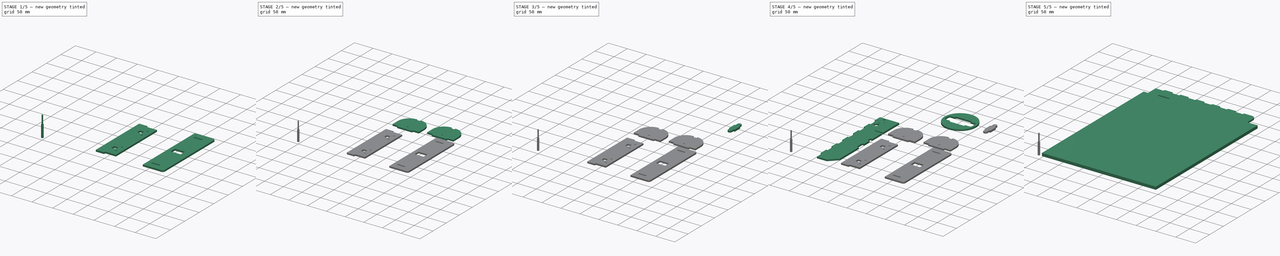
[diagram: build sequence overview — one tinted view per stage of 5, left to right]
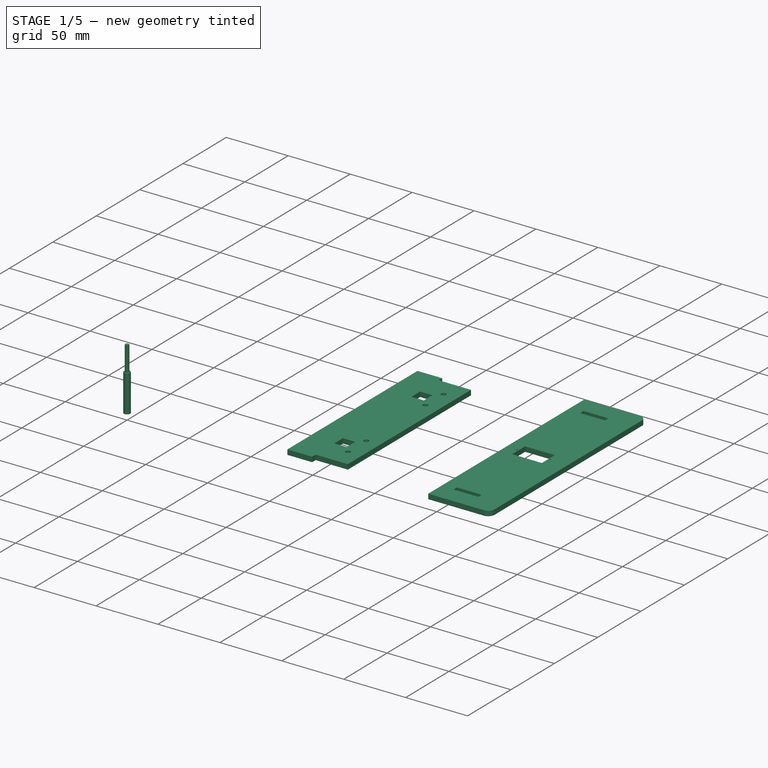
[diagram: stage 1 of 5 — iso view after this stage's code; geometry added in this stage tinted green]
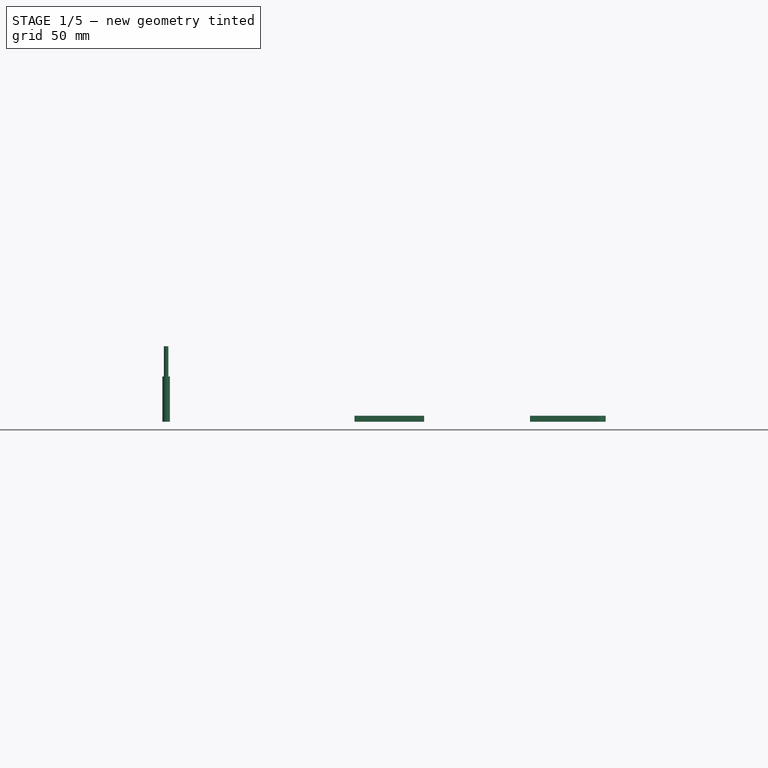
[diagram: stage 1 of 5 — front view after this stage's code; geometry added in this stage tinted green]
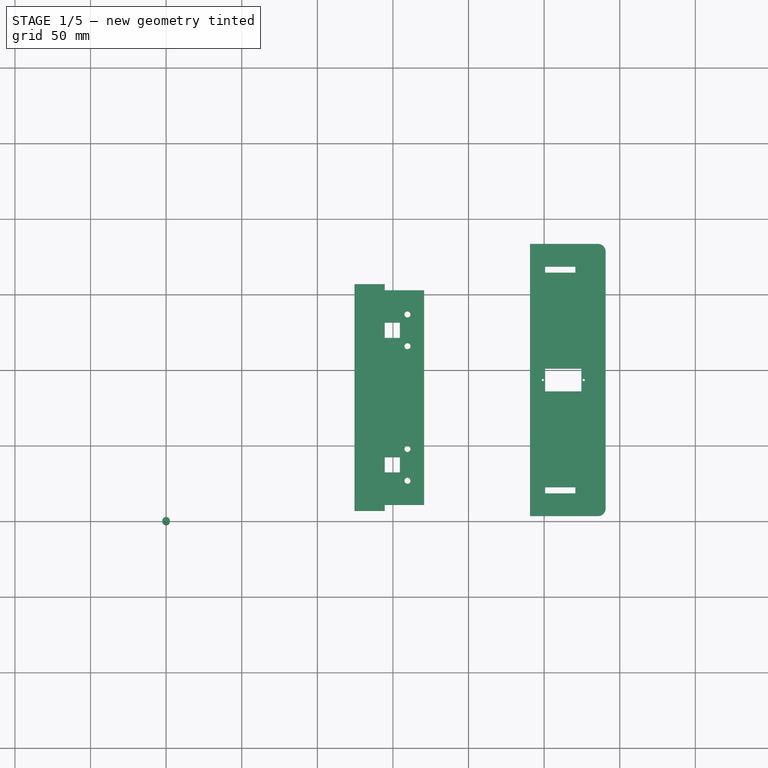
[diagram: stage 1 of 5 — top view after this stage's code; geometry added in this stage tinted green]
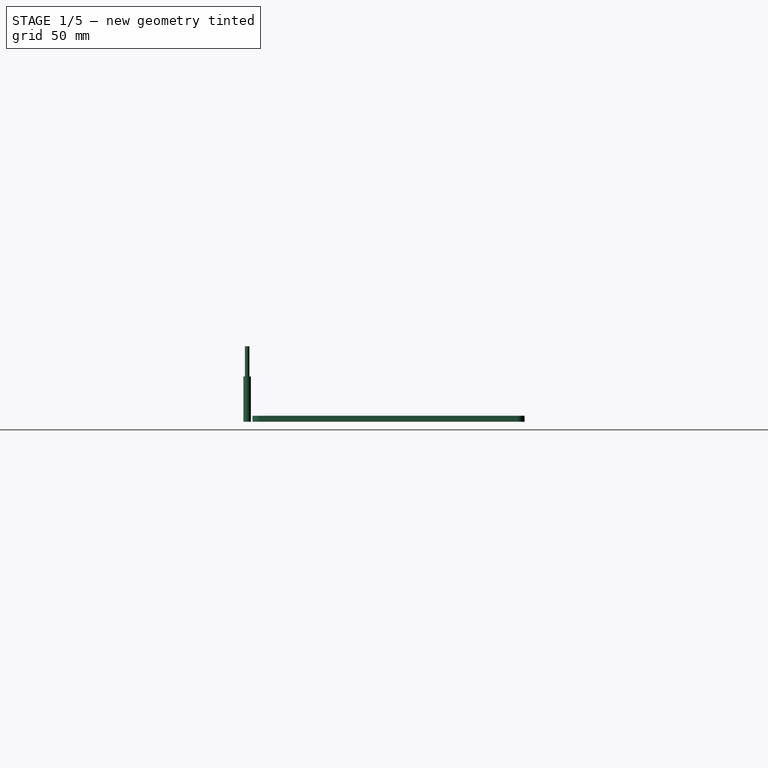
[diagram: stage 1 of 5 — right view after this stage's code; geometry added in this stage tinted green]
FCSTD DOCUMENT  (FreeCAD 1.0R39319 (Git))
Label: CAR_LASER_COMPONENTS
License: All rights reserved
LicenseURL: https://en.wikipedia.org/wiki/All_rights_reserved
objects: Part::FeaturePython×19, Part::Part2DObjectPython×8, Path::FeaturePython×6, App::DocumentObjectGroup×3, Sketcher::SketchObject×2, App::FeaturePython×1, App::LinkGroup×1
note: 31 computed .brp shape members not serialized (recipe doc carries the construction recipe); baked Part::Feature solids carry a one-line shape summary decoded from their .brp

FEATURE [Part::FeaturePython] b_chassis_SERVO_STRUT_A4_001_  label="chassis_SERVO_STRUT_A4_001"  # a2plus imported part (geometry in sourceFile) (typed FeaturePython)
  Placement = pos=(140.674,18.548,0) rot=(0,0,1;0rad)
  a2p_Version = 0.4.68
  fixedPosition = false
  objectType = a2pPart
  sourceFile = ./chassis_SERVO_STRUT_A4.FCStd
  subassemblyImport = false
  timeLastImport = 1.77488e+09
  updateColors = true
FEATURE [Part::FeaturePython] b_shear_strut_001_  label="shear_strut_001"  # a2plus imported part (geometry in sourceFile) (typed FeaturePython)
  Placement = pos=(170.611,156.939,4) rot=(0.707107,0,-0.707107;3.14159rad)
  a2p_Version = 0.4.68
  fixedPosition = false
  objectType = a2pPart
  sourceFile = ./shear_strut.FCStd
  subassemblyImport = false
  timeLastImport = 1.77246e+09
  updateColors = true
FEATURE [Part::FeaturePython] Clone007  label="Model-shear_strut_001"  # Draft clone (typed FeaturePython)
  AttacherType = Attacher::AttachEngine3D
  Fuse = false
  Objects = -> [b_shear_strut_001_]
  PathResource = Model
  Placement = pos=(170.611,156.939,4) rot=(0.707107,0,-0.707107;3.14159rad)
  Scale = (1,1,1)
FEATURE [App::DocumentObjectGroup] Model
  Group = -> [Clone,Clone001,Clone002,Clone004,Clone005,Clone006,Clone007,Clone008]
FEATURE [Part::FeaturePython] ToolBit  label="Endmill"  # Path/CAM toolbit (typed FeaturePython)
  BitPropertyNames = Chipload | CuttingEdgeHeight | Diameter | Flutes | Length | Material | ShankDiameter | SpindleDirection
  BitShape = <path>
  Chipload = 0
  CuttingEdgeHeight = 30
  Diameter = 5
  Flutes = 0
  Length = 50
  Material = 0
  ShankDiameter = 3
  ShapeName = endmill
  SpindleDirection = 0
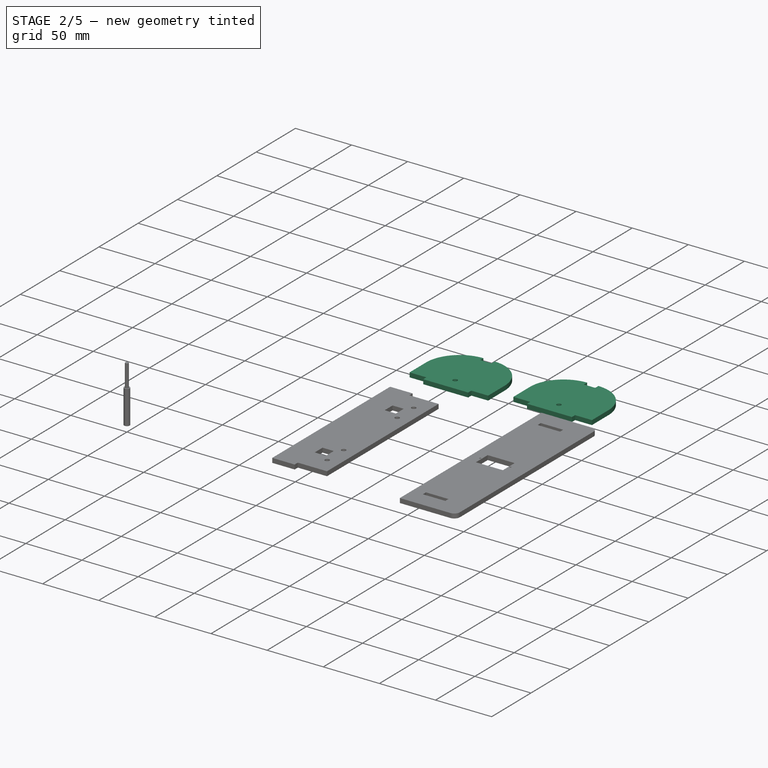
[diagram: stage 2 of 5 — iso view after this stage's code; geometry added in this stage tinted green]
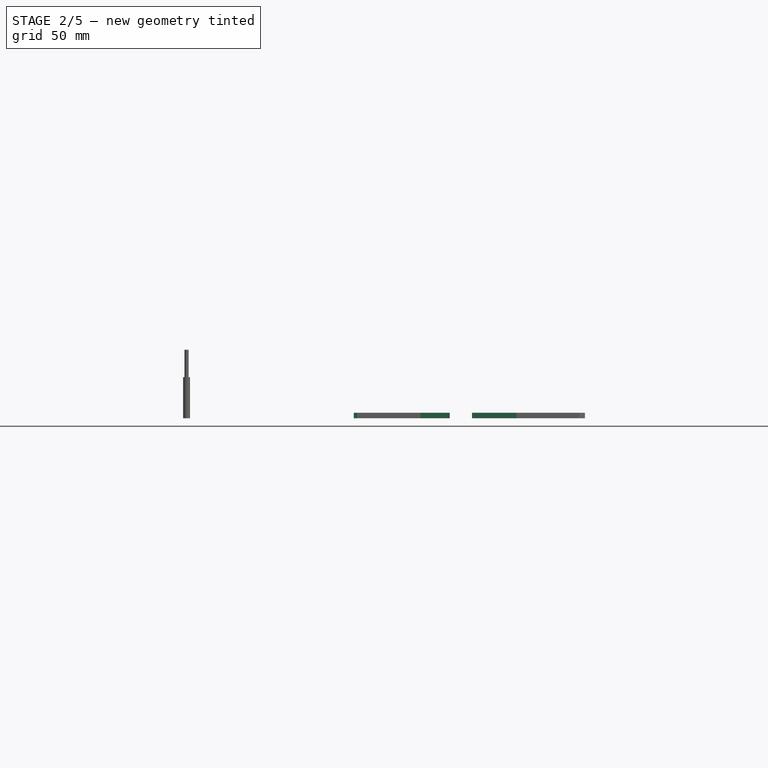
[diagram: stage 2 of 5 — front view after this stage's code; geometry added in this stage tinted green]
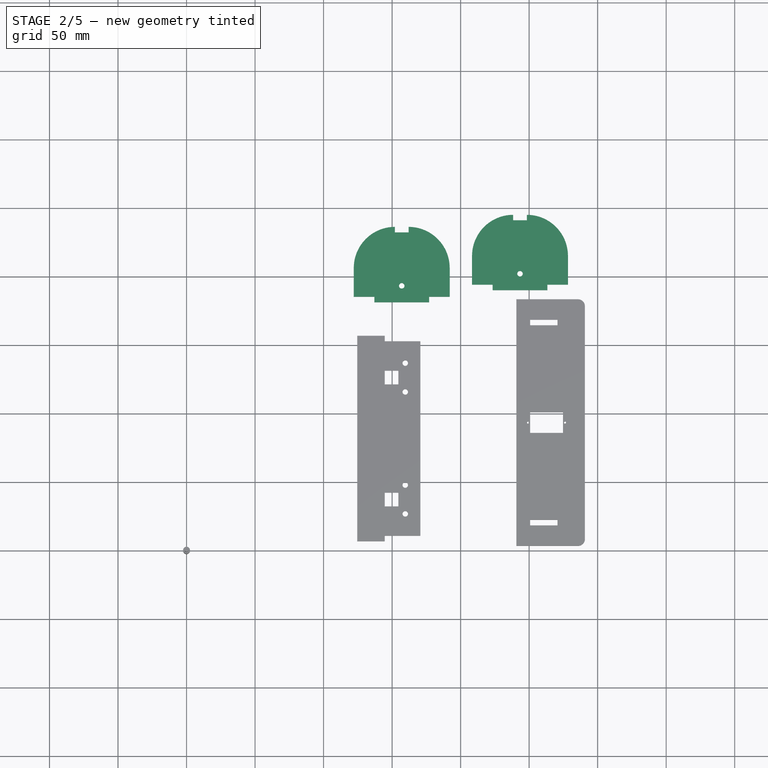
[diagram: stage 2 of 5 — top view after this stage's code; geometry added in this stage tinted green]
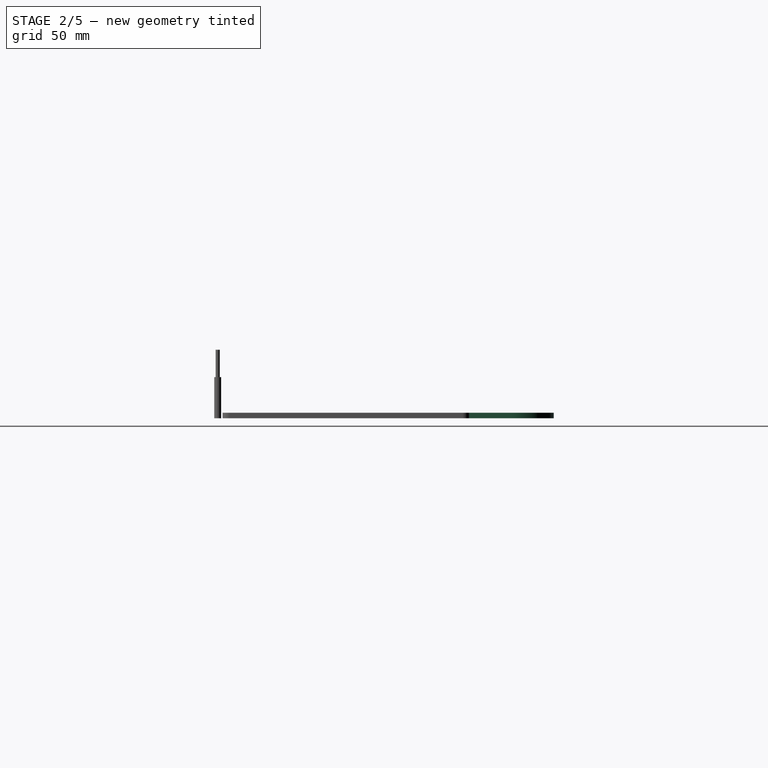
[diagram: stage 2 of 5 — right view after this stage's code; geometry added in this stage tinted green]
FEATURE [Part::FeaturePython] b_chassis_wheel_side_001_  label="chassis_wheel_side_001"  # a2plus imported part (geometry in sourceFile) (typed FeaturePython)
  Placement = pos=(208.328,190.182,2.9e-15) rot=(-1,0,0;1.5708rad)
  a2p_Version = 0.4.68
  fixedPosition = false
  objectType = a2pPart
  sourceFile = ./chassis_wheel_side.FCStd
  subassemblyImport = false
  timeLastImport = 1.77488e+09
  updateColors = true
FEATURE [Part::FeaturePython] b_chassis_wheel_side_001_001  label="chassis_wheel_side_002"  # a2plus imported part (geometry in sourceFile) (typed FeaturePython)
  Placement = pos=(122.028,181.382,8e-16) rot=(-1,0,0;1.5708rad)
  a2p_Version = 0.4.68
  fixedPosition = false
  objectType = a2pPart
  sourceFile = ./chassis_wheel_side.FCStd
  subassemblyImport = false
  timeLastImport = 1.77488e+09
  updateColors = true
FEATURE [Part::FeaturePython] Clone004  label="Model-chassis_SERVO_STRUT_A4_001"  # Draft clone (typed FeaturePython)
  AttacherType = Attacher::AttachEngine3D
  Fuse = false
  Objects = -> [b_chassis_SERVO_STRUT_A4_001_]
  PathResource = Model
  Placement = pos=(140.674,18.548,0) rot=(0,0,1;0rad)
  Scale = (1,1,1)
FEATURE [Part::FeaturePython] Clone006  label="Model-chassis_wheel_side_002"  # Draft clone (typed FeaturePython)
  AttacherType = Attacher::AttachEngine3D
  Fuse = false
  Objects = -> [b_chassis_wheel_side_001_001]
  PathResource = Model
  Placement = pos=(122.028,181.382,8e-16) rot=(-1,0,0;1.5708rad)
  Scale = (1,1,1)
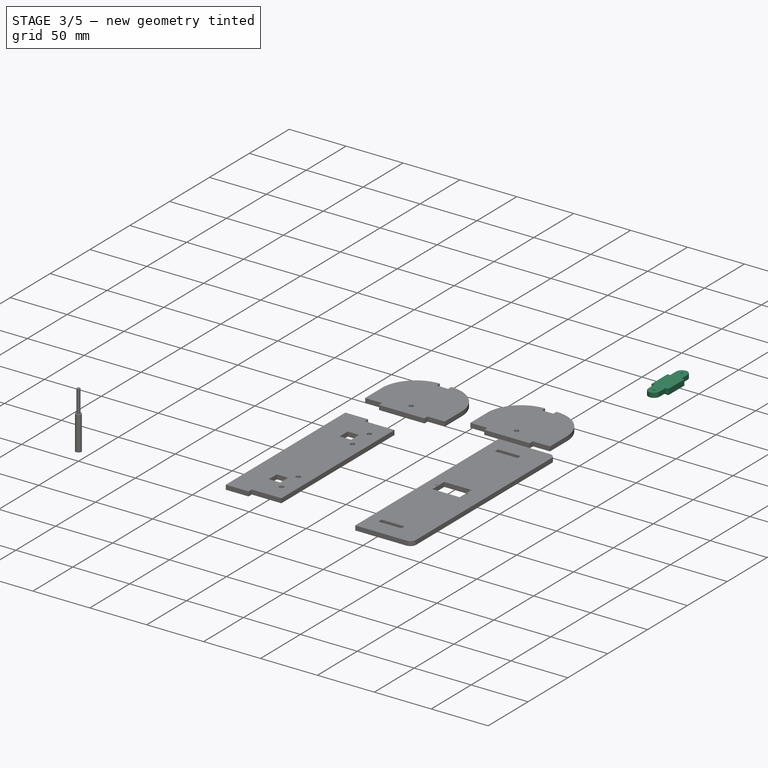
[diagram: stage 3 of 5 — iso view after this stage's code; geometry added in this stage tinted green]
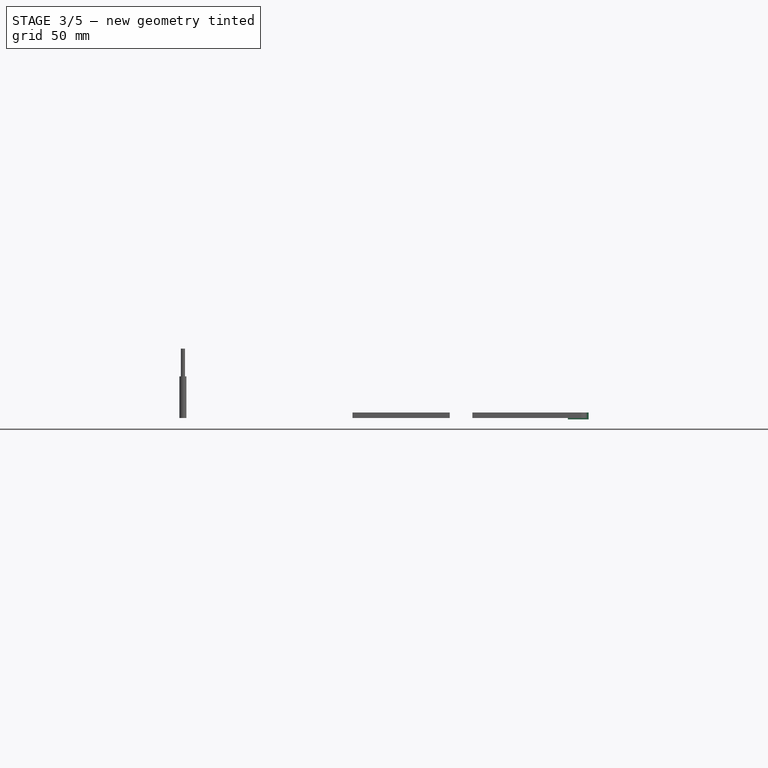
[diagram: stage 3 of 5 — front view after this stage's code; geometry added in this stage tinted green]
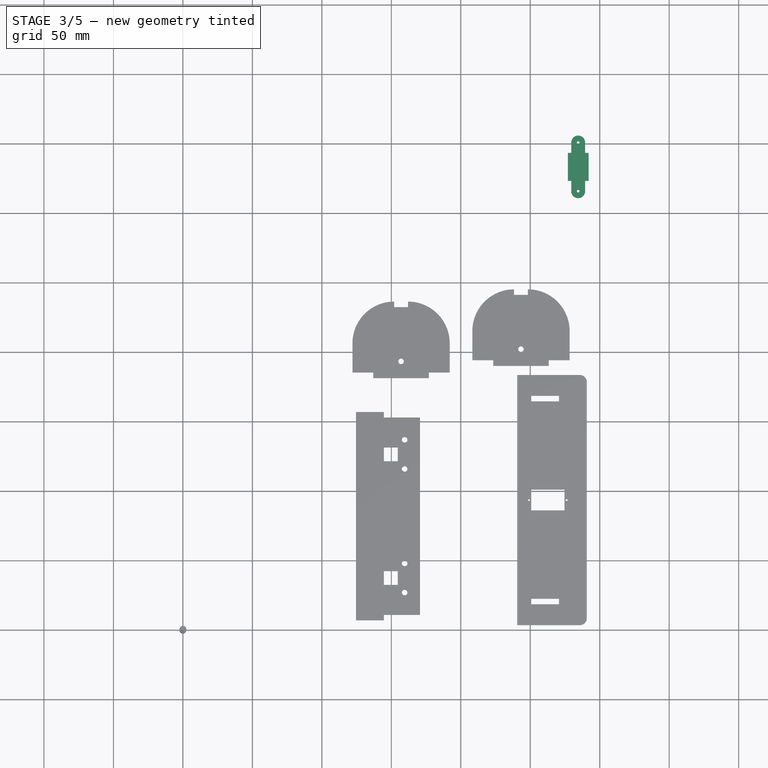
[diagram: stage 3 of 5 — top view after this stage's code; geometry added in this stage tinted green]
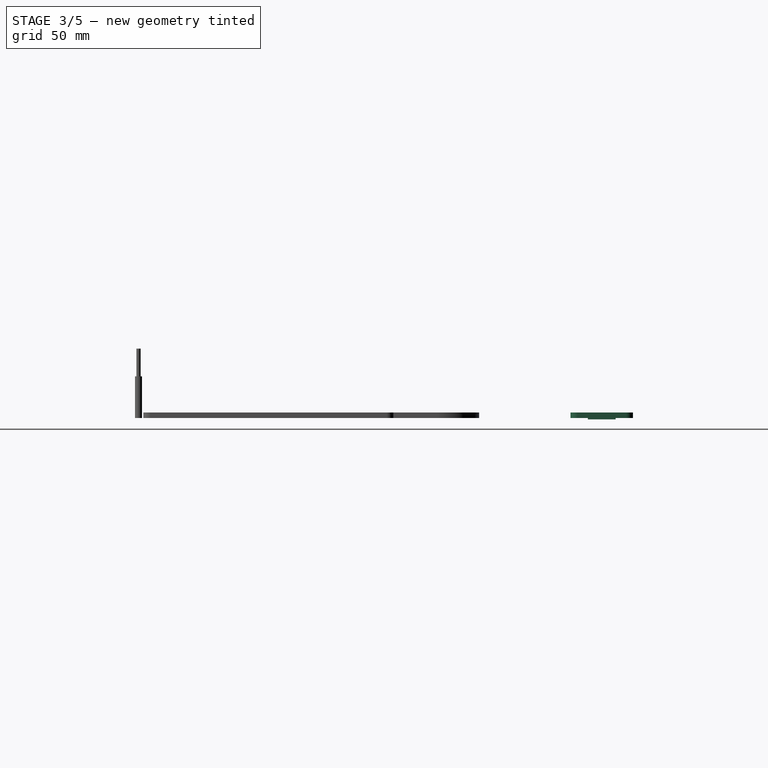
[diagram: stage 3 of 5 — right view after this stage's code; geometry added in this stage tinted green]
FEATURE [Part::FeaturePython] b_arm_for_servo_arm_001_  label="arm_for_servo_arm_001"  # a2plus imported part (geometry in sourceFile) (typed FeaturePython)
  Placement = pos=(284.495,333.389,0) rot=(0,0,1;0rad)
  a2p_Version = 0.4.68
  fixedPosition = false
  objectType = a2pPart
  sourceFile = ./arm_for_servo_arm.FCStd
  subassemblyImport = false
  timeLastImport = 1.77222e+09
  updateColors = true
FEATURE [Part::Part2DObjectPython] ShapeString001  # Draft 2D object (typed FeaturePython)
  FontFile = <userpath>/Documents/Projects_DIY/002-24-hourclock/FONTS/Karla_BoldStencil.ttf
  Fuse = false
  Justification = 6
  JustificationReference = 0
  KeepLeftMargin = false
  MakeFace = true
  ObliqueAngle = 0
  Placement = pos=(141.37,319.18,100) rot=(0,0,1;0rad)
  ScaleToSize = true
  Size = 10
  String = A1
  Tracking = 0
FEATURE [Part::Part2DObjectPython] ShapeString002  # Draft 2D object (typed FeaturePython)
  FontFile = <userpath>/Documents/Projects_DIY/002-24-hourclock/FONTS/Karla_BoldStencil.ttf
  Fuse = false
  Justification = 6
  JustificationReference = 0
  KeepLeftMargin = false
  MakeFace = true
  ObliqueAngle = 0
  Placement = pos=(32.1,156.11,100) rot=(0,0,1;0rad)
  ScaleToSize = true
  Size = 10
  String = A2
  Tracking = 0
FEATURE [Part::Part2DObjectPython] ShapeString003  # Draft 2D object (typed FeaturePython)
  FontFile = <userpath>/Documents/Projects_DIY/002-24-hourclock/FONTS/Karla_BoldStencil.ttf
  Fuse = false
  Justification = 6
  JustificationReference = 0
  KeepLeftMargin = false
  MakeFace = true
  ObliqueAngle = 0
  Placement = pos=(80.12,155.82,100) rot=(0,0,1;0rad)
  ScaleToSize = true
  Size = 10
  String = A3
  Tracking = 0
FEATURE [Part::Part2DObjectPython] ShapeString004  label="ShapeString0B1"  # Draft 2D object (typed FeaturePython)
  FontFile = <userpath>/Documents/Projects_DIY/002-24-hourclock/FONTS/Karla_BoldStencil.ttf
  Fuse = false
  Justification = 6
  JustificationReference = 0
  KeepLeftMargin = false
  MakeFace = true
  ObliqueAngle = 0
  Placement = pos=(216.02,321.6,100) rot=(0,0,1;0rad)
  ScaleToSize = true
  Size = 10
  String = B1
  Tracking = 0
FEATURE [Part::Part2DObjectPython] ShapeString005  label="ShapeString0B02"  # Draft 2D object (typed FeaturePython)
  FontFile = <userpath>/Documents/Projects_DIY/002-24-hourclock/FONTS/Karla_BoldStencil.ttf
  Fuse = false
  Justification = 6
  JustificationReference = 0
  KeepLeftMargin = false
  MakeFace = true
  ObliqueAngle = 0
  Placement = pos=(161.37,202.68,100) rot=(0,0,1;0rad)
  ScaleToSize = true
  Size = 10
  String = B2
  Tracking = 0
FEATURE [Part::Part2DObjectPython] ShapeString006  label="ShapeString0B003"  # Draft 2D object (typed FeaturePython)
  FontFile = <userpath>/Documents/Projects_DIY/002-24-hourclock/FONTS/Karla_BoldStencil.ttf
  Fuse = false
  Justification = 6
  JustificationReference = 0
  KeepLeftMargin = false
  MakeFace = true
  ObliqueAngle = 0
  Placement = pos=(244.61,214,100) rot=(0,0,1;0rad)
  ScaleToSize = true
  Size = 10
  String = B3
  Tracking = 0
FEATURE [Part::Part2DObjectPython] ShapeString007  label="ShapeStringC1"  # Draft 2D object (typed FeaturePython)
  FontFile = <userpath>/Documents/Projects_DIY/002-24-hourclock/FONTS/Karla_BoldStencil.ttf
  Fuse = false
  Justification = 6
  JustificationReference = 0
  KeepLeftMargin = false
  MakeFace = true
  ObliqueAngle = 0
  Placement = pos=(151.18,91.13,100) rot=(0,0,1;0rad)
  ScaleToSize = true
  Size = 10
  String = C1
  Tracking = 0
FEATURE [Part::Part2DObjectPython] ShapeString008  label="ShapeStringC2"  # Draft 2D object (typed FeaturePython)
  FontFile = <userpath>/Documents/Projects_DIY/002-24-hourclock/FONTS/Karla_BoldStencil.ttf
  Fuse = false
  Justification = 6
  JustificationReference = 0
  KeepLeftMargin = false
  MakeFace = true
  ObliqueAngle = 0
  Placement = pos=(262.16,118.31,100) rot=(0,0,1;0rad)
  ScaleToSize = true
  Size = 10
  String = C2
  Tracking = 0
FEATURE [App::FeaturePython] SetupSheet  # Path/CAM operation (typed FeaturePython)
  ClearanceHeightExpression = OpStockZMax+SetupSheet.ClearanceHeightOffset
  ClearanceHeightOffset = 5
  CoolantMode = 0
  CoolantModes = None | Flood | Mist
  FinalDepthExpression = OpFinalDepth
  HorizRapid = 0
  SafeHeightExpression = OpStockZMax+SetupSheet.SafeHeightOffset
  SafeHeightOffset = 3
  StartDepthExpression = OpStartDepth
  StepDownExpression = OpToolDiameter
  VertRapid = 0
FEATURE [Part::FeaturePython] Clone  label="Model-arm_for_servo_arm_001"  # Draft clone (typed FeaturePython)
  AttacherType = Attacher::AttachEngine3D
  Fuse = false
  Objects = -> [b_arm_for_servo_arm_001_]
  PathResource = Model
  Placement = pos=(284.495,333.389,0) rot=(0,0,1;0rad)
  Scale = (1,1,1)
FEATURE [Part::FeaturePython] Clone005  label="Model-chassis_wheel_side_001"  # Draft clone (typed FeaturePython)
  AttacherType = Attacher::AttachEngine3D
  Fuse = false
  Objects = -> [b_chassis_wheel_side_001_]
  PathResource = Model
  Placement = pos=(208.328,190.182,2.9e-15) rot=(-1,0,0;1.5708rad)
  Scale = (1,1,1)
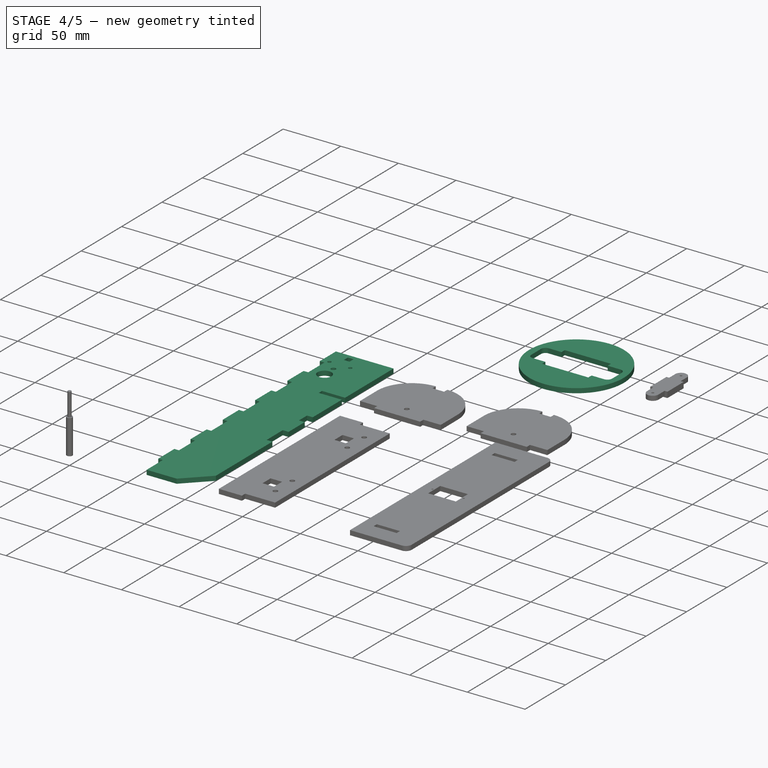
[diagram: stage 4 of 5 — iso view after this stage's code; geometry added in this stage tinted green]
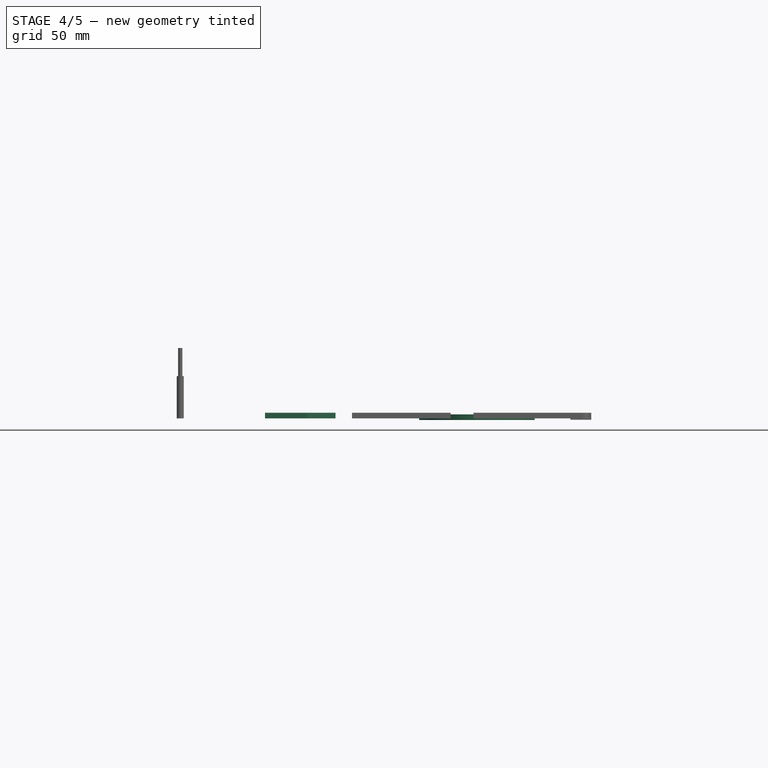
[diagram: stage 4 of 5 — front view after this stage's code; geometry added in this stage tinted green]
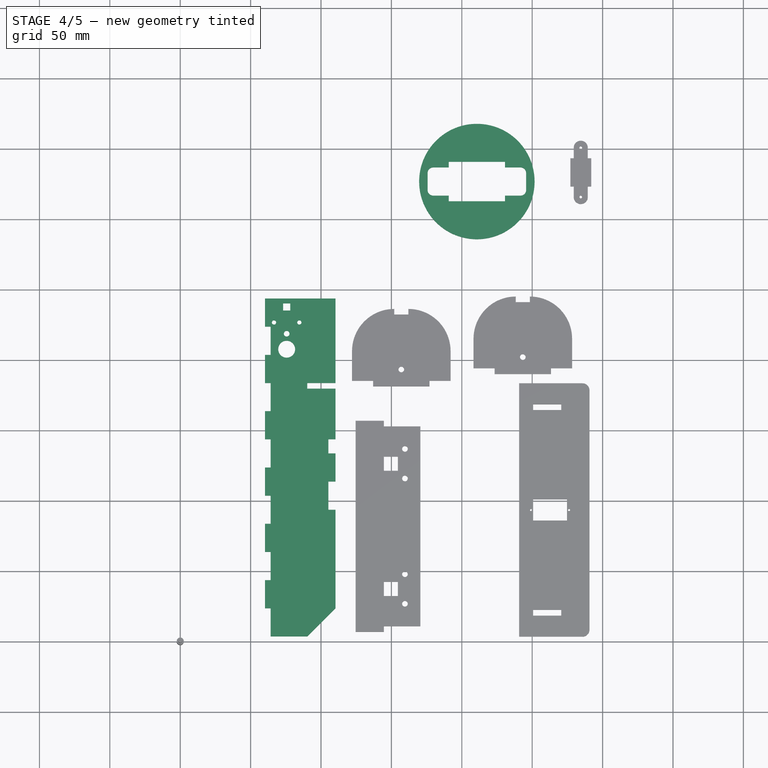
[diagram: stage 4 of 5 — top view after this stage's code; geometry added in this stage tinted green]
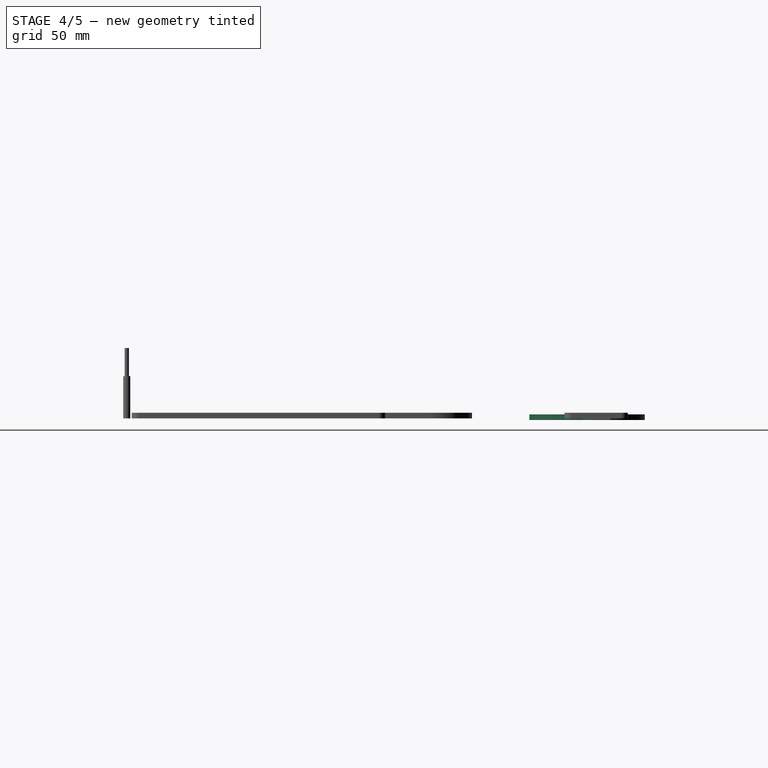
[diagram: stage 4 of 5 — right view after this stage's code; geometry added in this stage tinted green]
FEATURE [Sketcher::SketchObject] Sketch
  ArcFitTolerance = 0
  FullyConstrained = false
  MakeInternals = false
  sketch-geometry (15):
    g0: LineSegment [constr] StartX=0 StartY=0 StartZ=0 EndX=297 EndY=0 EndZ=0
    g1: LineSegment [constr] StartX=297 StartY=0 StartZ=0 EndX=297 EndY=210 EndZ=0
    g2: LineSegment [constr] StartX=297 StartY=210 StartZ=0 EndX=0 EndY=210 EndZ=0
    g3: LineSegment [constr] StartX=0 StartY=210 StartZ=0 EndX=0 EndY=0 EndZ=0
    g4: LineSegment StartX=0 StartY=0 StartZ=0 EndX=297 EndY=0 EndZ=0
    g5: LineSegment StartX=297 StartY=0 StartZ=0 EndX=297 EndY=210 EndZ=0
    g6: LineSegment StartX=297 StartY=210 StartZ=0 EndX=0 EndY=210 EndZ=0
    g7: LineSegment StartX=0 StartY=210 StartZ=0 EndX=0 EndY=0 EndZ=0
    g8: LineSegment StartX=297 StartY=210 StartZ=0 EndX=297 EndY=408.863 EndZ=0
    g9: LineSegment StartX=297 StartY=408.863 StartZ=0 EndX=0 EndY=408.863 EndZ=0
    g10: LineSegment StartX=0 StartY=408.863 StartZ=0 EndX=0 EndY=210 EndZ=0
    g11: LineSegment StartX=0 StartY=297 StartZ=0 EndX=0 EndY=0 EndZ=0
    g12: LineSegment StartX=0 StartY=0 StartZ=0 EndX=210 EndY=0 EndZ=0
    g13: LineSegment StartX=210 StartY=0 StartZ=0 EndX=210 EndY=297 EndZ=0
    g14: LineSegment StartX=210 StartY=297 StartZ=0 EndX=0 EndY=297 EndZ=0
  constraints (39):
    c: Coincident(g0,g1)
    c: Coincident(g1,g2)
    c: Coincident(g2,g3)
    c: Coincident(g3,g0)
    c: Horizontal(g0)
    c: Horizontal(g2)
    c: Vertical(g1)
    c: Vertical(g3)
    c: Coincident(g0,g-1)
    c: DistanceY(g1,g1) = 210
    c: DistanceX(g2,g2) = 297
    c: Coincident(g4,g5)
    c: Coincident(g5,g6)
    c: Coincident(g6,g7)
    c: Coincident(g7,g4)
    c: Horizontal(g4)
    c: Horizontal(g6)
    c: Vertical(g5)
    c: Vertical(g7)
    c: Coincident(g4,g0)
    c: Coincident(g5,g1)
    c: Coincident(g8,g1)
    c: Vertical(g8)
    c: Coincident(g9,g8)
    c: PointOnObject(g9,g-2)
    c: Horizontal(g9)
    c: Coincident(g10,g9)
    c: Coincident(g10,g2)
    c: Coincident(g11,g12)
    c: Coincident(g12,g13)
    c: Coincident(g13,g14)
    c: Coincident(g14,g11)
    c: Vertical(g11)
    c: Vertical(g13)
    c: Horizontal(g12)
    c: Horizontal(g14)
    c: Equal(g5,g12)
    c: Equal(g6,g13)
    c: Coincident(g11,g0)
FEATURE [Part::FeaturePython] b_chassis_A4_001_001  label="chassis_A4_002"  # a2plus imported part (geometry in sourceFile) (typed FeaturePython)
  Placement = pos=(60.2428,243.756,-8.12182e-07) rot=(0.57735,-0.57735,0.57735;4.18879rad)
  a2p_Version = 0.4.68
  fixedPosition = true
  objectType = a2pPart
  sourceFile = ./chassis_A4.FCStd
  subassemblyImport = false
  timeLastImport = 1.77512e+09
  updateColors = true
FEATURE [Part::FeaturePython] b_stearing_A_001_  label="stearing_A_001"  # a2plus imported part (geometry in sourceFile) (typed FeaturePython)
  Placement = pos=(15.4176,251.906,-5.18594) rot=(0,0,1;0rad)
  a2p_Version = 0.4.68
  fixedPosition = false
  objectType = a2pPart
  sourceFile = ./stearing_A.FCStd
  subassemblyImport = false
  timeLastImport = 1.77512e+09
  updateColors = true
FEATURE [Part::FeaturePython] Clone002  label="Model-chassis_A4_002"  # Draft clone (typed FeaturePython)
  AttacherType = Attacher::AttachEngine3D
  Fuse = false
  Objects = -> [b_chassis_A4_001_001]
  PathResource = Model
  Placement = pos=(60.2428,243.756,-8.12182e-07) rot=(0.57735,-0.57735,0.57735;4.18879rad)
  Scale = (1,1,1)
FEATURE [Part::FeaturePython] Clone008  label="Model-stearing_A_001"  # Draft clone (typed FeaturePython)
  AttacherType = Attacher::AttachEngine3D
  Fuse = false
  Objects = -> [b_stearing_A_001_]
  PathResource = Model
  Placement = pos=(15.5176,251.906,-5.18594) rot=(0,0,1;0rad)
  Scale = (1,1,1)
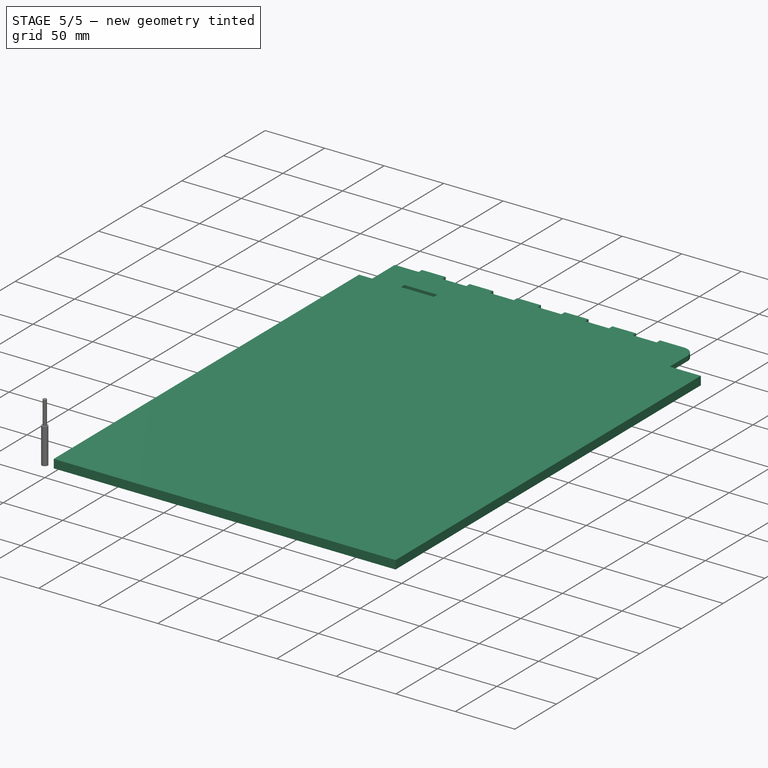
[diagram: stage 5 of 5 — iso view after this stage's code; geometry added in this stage tinted green]
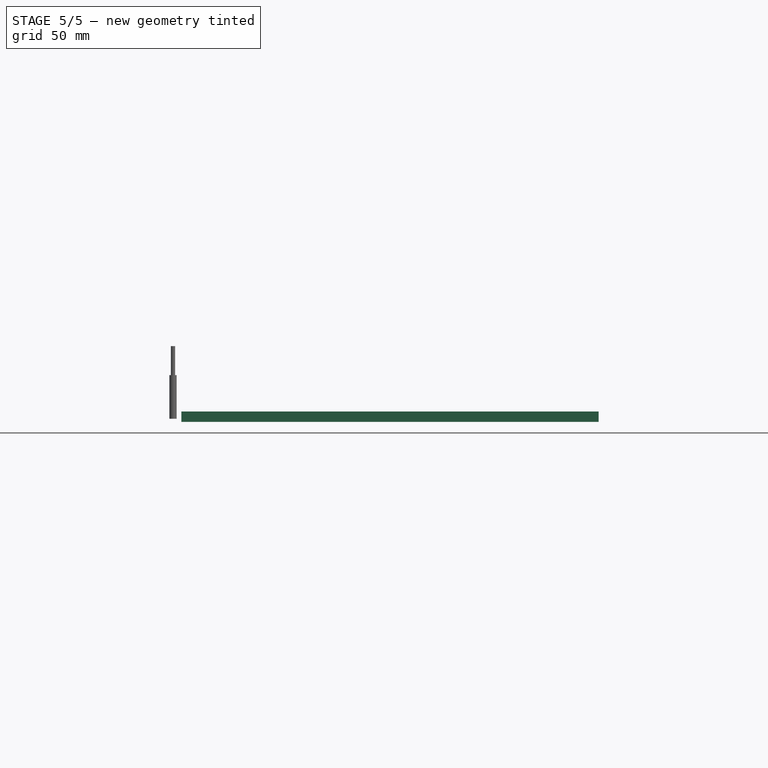
[diagram: stage 5 of 5 — front view after this stage's code; geometry added in this stage tinted green]
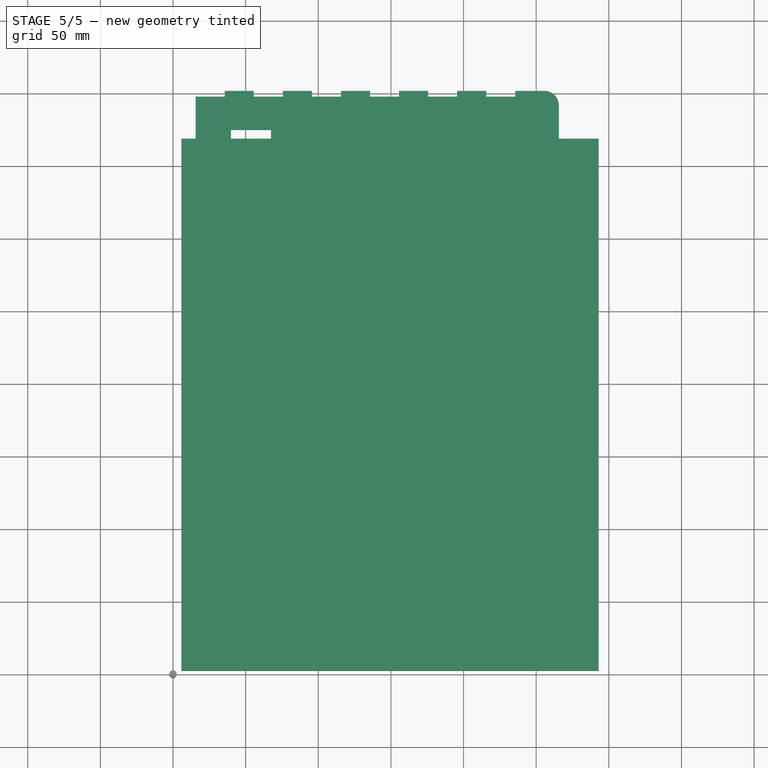
[diagram: stage 5 of 5 — top view after this stage's code; geometry added in this stage tinted green]
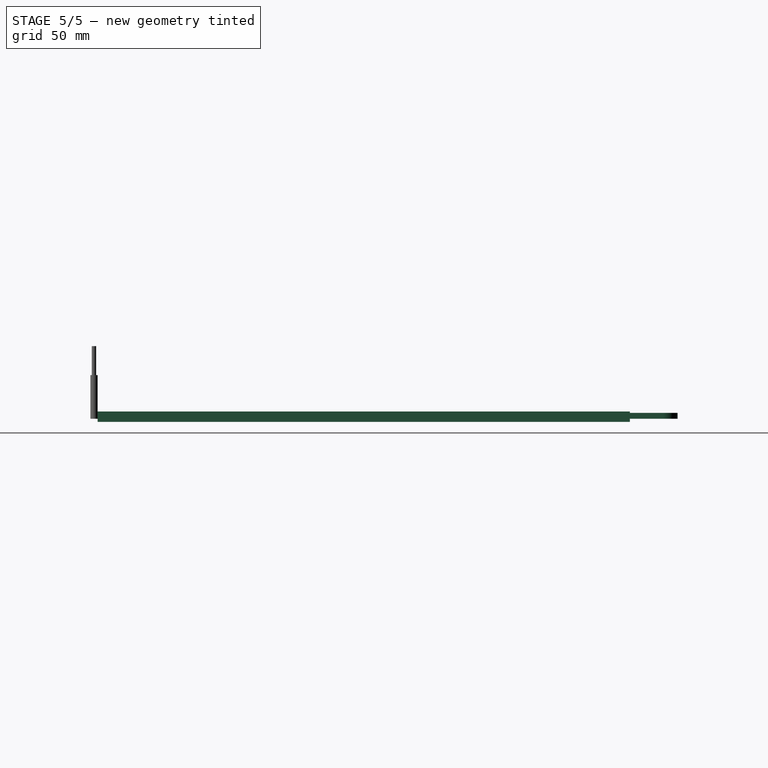
[diagram: stage 5 of 5 — right view after this stage's code; geometry added in this stage tinted green]
FEATURE [Part::FeaturePython] b_chassis_A4_001_  label="chassis_A4_001"  # a2plus imported part (geometry in sourceFile) (typed FeaturePython)
  Placement = pos=(6.74282,243.656,1.86709e-07) rot=(-0.57735,0.57735,-0.57735;2.0944rad)
  a2p_Version = 0.4.68
  fixedPosition = true
  objectType = a2pPart
  sourceFile = ./chassis_A4.FCStd
  subassemblyImport = false
  timeLastImport = 1.77512e+09
  updateColors = true
FEATURE [Part::FeaturePython] b_chassis_BASE_A4_001_  label="chassis_BASE_A4_001"  # a2plus imported part (geometry in sourceFile) (typed FeaturePython)
  Placement = pos=(15.6,251.8,0) rot=(0,0,1;0rad)
  a2p_Version = 0.4.68
  fixedPosition = true
  objectType = a2pPart
  sourceFile = ./chassis_BASE_A4.FCStd
  subassemblyImport = false
  timeLastImport = 1.77512e+09
  updateColors = true
FEATURE [Part::FeaturePython] Clone001  label="Model-chassis_A4_001"  # Draft clone (typed FeaturePython)
  AttacherType = Attacher::AttachEngine3D
  Fuse = false
  Objects = -> [b_chassis_A4_001_]
  PathResource = Model
  Placement = pos=(6.74282,243.656,1.86709e-07) rot=(-0.57735,0.57735,-0.57735;2.0944rad)
  Scale = (1,1,1)
FEATURE [Path::FeaturePython] TC__Default_Tool  label="TC: Default Tool"  # Path/CAM operation (typed FeaturePython)
  HorizFeed = 1000
  HorizRapid = 0
  SpindleDir = 0
  SpindleSpeed = 500
  Tool = -> ToolBit
  ToolNumber = 1
  VertFeed = 1000
  VertRapid = 0
  expr: HorizRapid = SetupSheet.HorizRapid
  expr: VertRapid = SetupSheet.VertRapid
FEATURE [App::DocumentObjectGroup] Tools
  Group = -> [TC__Default_Tool]
FEATURE [Part::FeaturePython] Stock  # WARN: FeaturePython — macro-defined, semantics opaque (R4)
  Base = -> Model
  ExtXneg = 1
  ExtXpos = 1
  ExtYneg = 1
  ExtYpos = 1
  ExtZneg = 1
  ExtZpos = 1
  Placement = pos=(6.74279,3.54796,-1.18594) rot=(0,0,1;0rad)
  StockType = FromBase
FEATURE [App::LinkGroup] LinkGroup
  ElementList = -> [ShapeString008,ShapeString001,ShapeString002,ShapeString003,ShapeString004,ShapeString005,ShapeString006,ShapeString007]
  LinkMode = 0
FEATURE [Path::FeaturePython] Engrave002  label="Lever_01"  # Path/CAM operation (typed FeaturePython)
  Active = true
  Base = -> [Clone]
  ClearanceHeight = 10
  CoolantMode = 0
  CycleTime = 00:00:00
  FinalDepth = -1
  OpFinalDepth = -1
  OpStartDepth = 4
  OpStockZMax = 5
  OpStockZMin = -2.18594
  OpToolDiameter = 5
  SafeHeight = 8
  StartDepth = 4
  StartVertex = 0
  StepDown = 5
  ToolController = -> TC__Default_Tool
  expr: ClearanceHeight = OpStockZMax + SetupSheet.ClearanceHeightOffset
  expr: FinalDepth = OpFinalDepth
  expr: SafeHeight = OpStockZMax + SetupSheet.SafeHeightOffset
  expr: StartDepth = OpStartDepth
  expr: StepDown = OpToolDiameter
FEATURE [Path::FeaturePython] Engrave003  label="Engrave_B2_B3"  # Path/CAM operation (typed FeaturePython)
  Active = true
  Base = -> [Clone006,Clone005]
  ClearanceHeight = 10
  CoolantMode = 0
  CycleTime = 00:00:01
  FinalDepth = -1
  OpFinalDepth = -1
  OpStartDepth = 4
  OpStockZMax = 5
  OpStockZMin = -2.18594
  OpToolDiameter = 5
  SafeHeight = 8
  StartDepth = 4
  StartVertex = 0
  StepDown = 5
  ToolController = -> TC__Default_Tool
  expr: ClearanceHeight = OpStockZMax + SetupSheet.ClearanceHeightOffset
  expr: FinalDepth = OpFinalDepth
  expr: SafeHeight = OpStockZMax + SetupSheet.SafeHeightOffset
  expr: StartDepth = OpStartDepth
  expr: StepDown = OpToolDiameter
FEATURE [Path::FeaturePython] Engrave004  label="Engrave_C2"  # Path/CAM operation (typed FeaturePython)
  Active = true
  Base = -> [Clone004]
  ClearanceHeight = 10
  CoolantMode = 0
  CycleTime = 00:00:01
  FinalDepth = -1
  OpFinalDepth = -1
  OpStartDepth = 4
  OpStockZMax = 5
  OpStockZMin = -2.18594
  OpToolDiameter = 5
  SafeHeight = 8
  StartDepth = 4
  StartVertex = 0
  StepDown = 5
  ToolController = -> TC__Default_Tool
  expr: ClearanceHeight = OpStockZMax + SetupSheet.ClearanceHeightOffset
  expr: FinalDepth = OpFinalDepth
  expr: SafeHeight = OpStockZMax + SetupSheet.SafeHeightOffset
  expr: StartDepth = OpStartDepth
  expr: StepDown = OpToolDiameter
FEATURE [Path::FeaturePython] Engrave005  label="Engrave_C1"  # Path/CAM operation (typed FeaturePython)
  Active = true
  Base = -> [Clone007]
  ClearanceHeight = 10
  CoolantMode = 0
  CycleTime = 00:00:01
  FinalDepth = -1
  OpFinalDepth = -1
  OpStartDepth = 4
  OpStockZMax = 5
  OpStockZMin = -2.18594
  OpToolDiameter = 5
  SafeHeight = 8
  StartDepth = 4
  StartVertex = 0
  StepDown = 5
  ToolController = -> TC__Default_Tool
  expr: ClearanceHeight = OpStockZMax + SetupSheet.ClearanceHeightOffset
  expr: FinalDepth = OpFinalDepth
  expr: SafeHeight = OpStockZMax + SetupSheet.SafeHeightOffset
  expr: StartDepth = OpStartDepth
  expr: StepDown = OpToolDiameter
FEATURE [App::DocumentObjectGroup] Operations
  Group = -> [Engrave002,Engrave003,Engrave004,Engrave005]
FEATURE [Path::FeaturePython] Job  # Path/CAM operation (typed FeaturePython)
  CycleTime = 00:00:03
  Fixtures = G54
  GeometryTolerance = 0.01
  JobType = 0
  Model = -> Model
  Operations = -> Operations
  OrderOutputBy = 0
  PostProcessor = 11
  PostProcessorOutputFile = <userpath>/Documents/papyrusplane/NC_CAR2/NC_V2.nc
  SetupSheet = -> SetupSheet
  SplitOutput = false
  Stock = -> Stock
  Tools = -> Tools
FEATURE [Sketcher::SketchObject] Sketch001
  ArcFitTolerance = 1e-06
  FullyConstrained = false
  MakeInternals = false
  sketch-geometry (2):
    g0: ArcOfCircle CenterX=215.518 CenterY=326.906 CenterZ=0 NormalX=0 NormalY=0 NormalZ=1 AngleXU=0 Radius=41 StartAngle=1.47294 EndAngle=1.66814
    g1: ArcOfCircle CenterX=215.518 CenterY=326.906 CenterZ=0 NormalX=0 NormalY=0 NormalZ=1 AngleXU=0 Radius=41 StartAngle=4.61504 EndAngle=4.81025
  constraints (4):
    c: Coincident(g0,g-5)
    c: Coincident(g0,g-4)
    c: Coincident(g1,g0)
    c: Coincident(g1,g-4)
note: 1 file-system path scrubbed to <path> (originals preserved in the JSON sidecar)
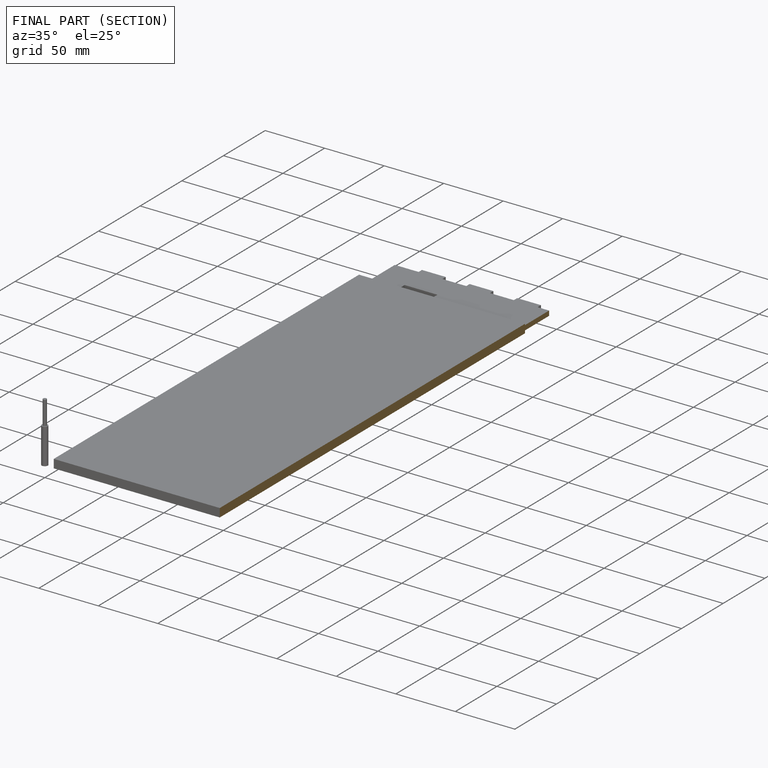
[diagram: finished part — half-section view (interior)]
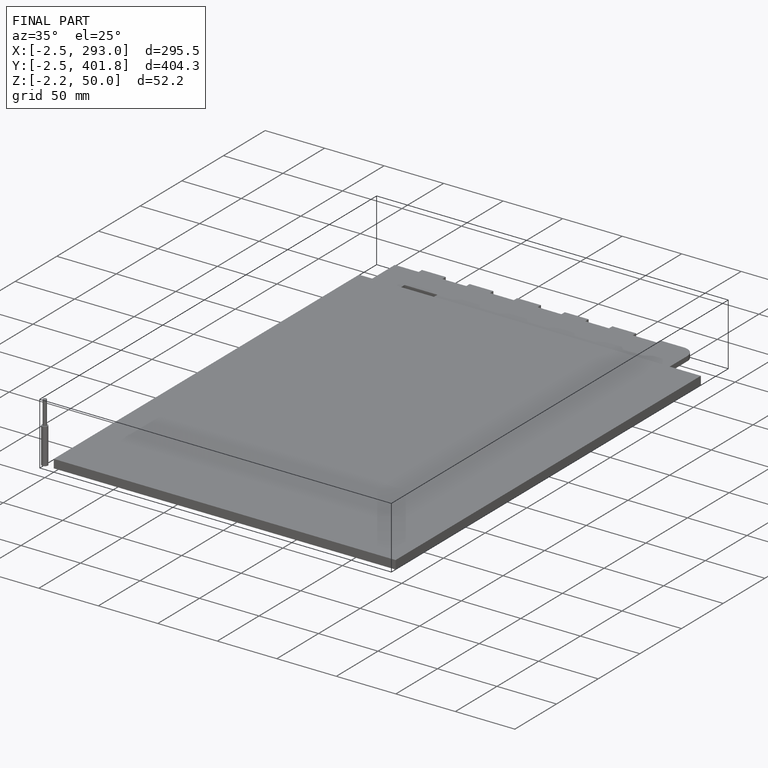
[diagram: finished part — iso view with bounding-box wireframe]
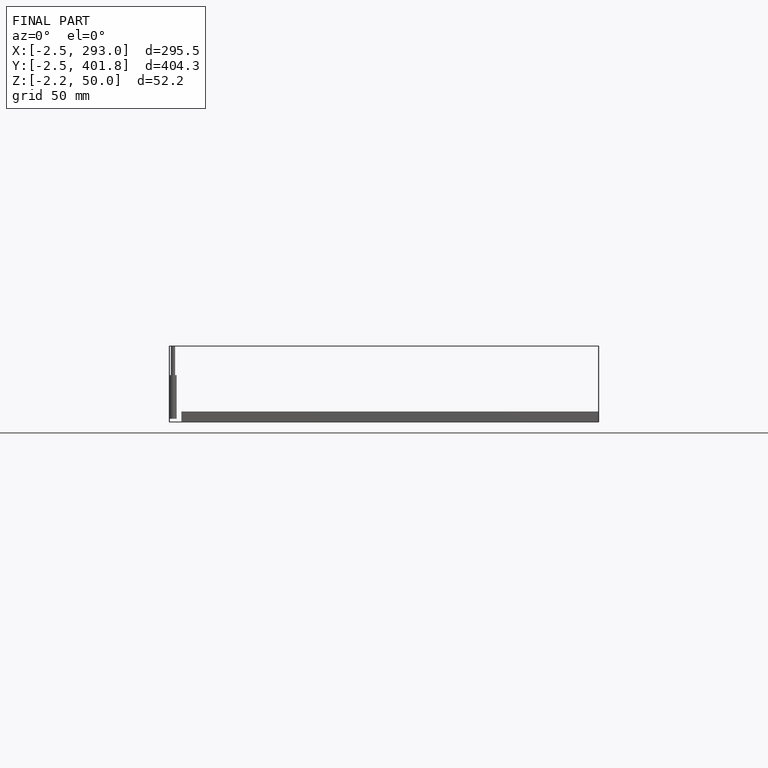
[diagram: finished part — front view with bounding-box wireframe]
